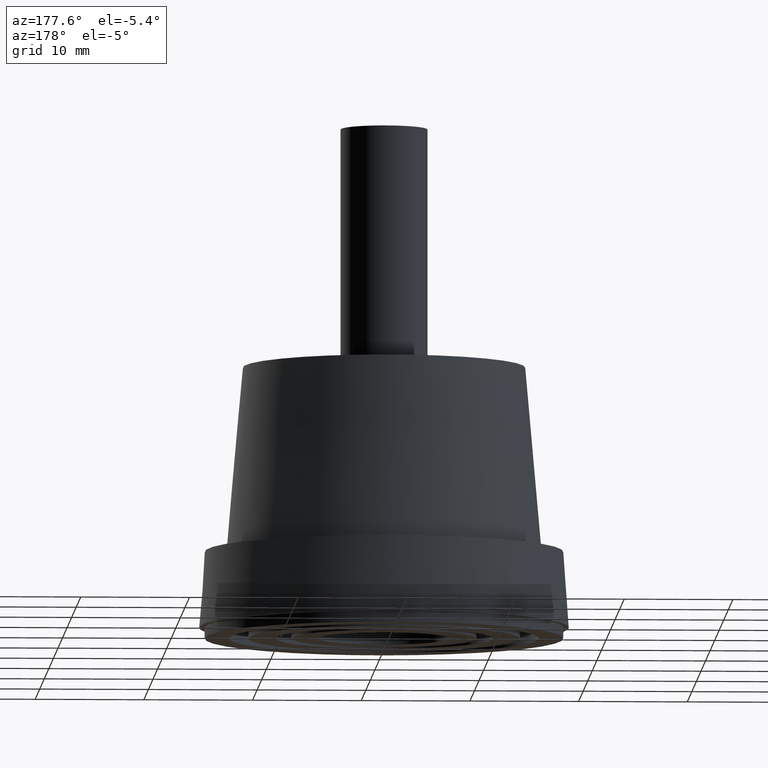
[diagram: clean part render]
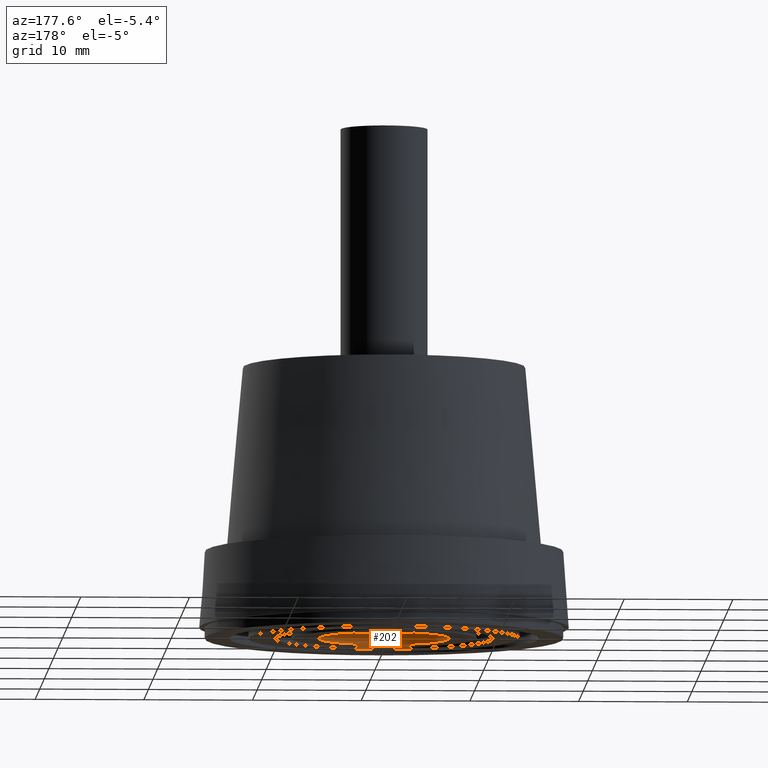
[diagram: same view with one face highlighted and labeled with its STEP entity id]
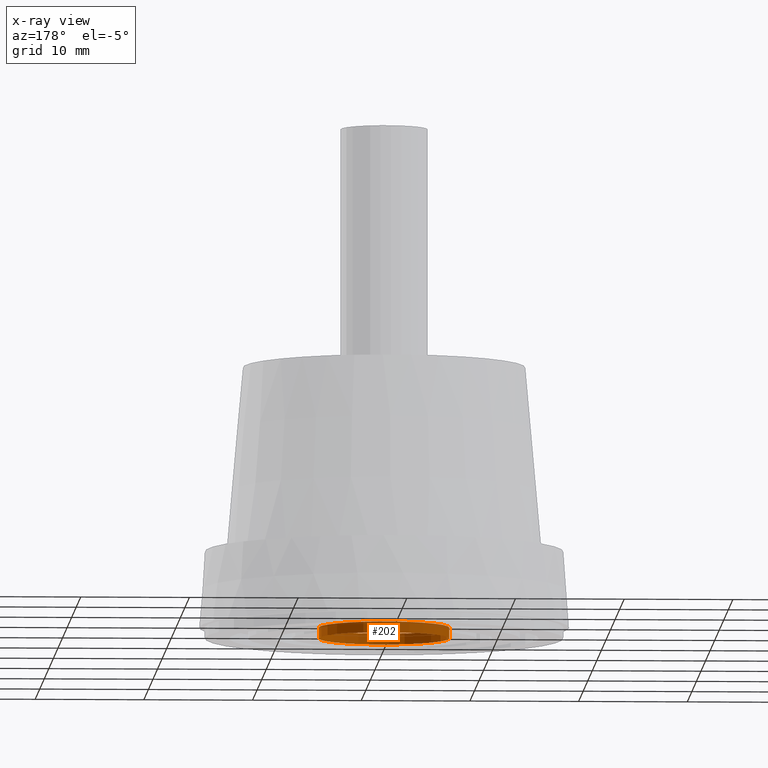
[diagram: x-ray of the same camera — body ghosted, the highlighted face saturated]
A machine part, auxiliary view. The second image highlights one B-rep face of the part: STEP entity #202.
The next image is the same camera in x-ray: the body ghosted, the highlighted face saturated — about 12% of this face is hidden behind the body in this view.
In plain terms, the highlighted cylindrical surface (bore or boss wall) has radius 6 mm, axis along (0, 0, 1).
Its self-contained STEP definition (entity closure, byte-faithful):
#33=FACE_BOUND('',#76,.T.);
#50=FACE_OUTER_BOUND('',#75,.T.);
#75=EDGE_LOOP('',(#165));
#76=EDGE_LOOP('',(#166));
#107=CIRCLE('',#232,6.);
#108=CIRCLE('',#233,6.);
#125=VERTEX_POINT('',#354);
#126=VERTEX_POINT('',#356);
#143=EDGE_CURVE('',#125,#125,#107,.T.);
#144=EDGE_CURVE('',#126,#126,#108,.T.);
#165=ORIENTED_EDGE('',*,*,#143,.T.);
#166=ORIENTED_EDGE('',*,*,#144,.F.);
#193=CYLINDRICAL_SURFACE('',#231,6.);
#202=ADVANCED_FACE('',(#50,#33),#193,.F.);
#231=AXIS2_PLACEMENT_3D('',#353,#284,#285);
#232=AXIS2_PLACEMENT_3D('',#355,#286,#287);
#233=AXIS2_PLACEMENT_3D('',#357,#288,#289);
#284=DIRECTION('center_axis',(0.,0.,1.));
#285=DIRECTION('ref_axis',(1.,0.,0.));
#286=DIRECTION('center_axis',(0.,0.,1.));
#287=DIRECTION('ref_axis',(1.,0.,0.));
#288=DIRECTION('center_axis',(0.,0.,1.));
#289=DIRECTION('ref_axis',(1.,0.,0.));
#353=CARTESIAN_POINT('Origin',(0.,0.,0.));
#354=CARTESIAN_POINT('',(-6.,7.34788079488412E-16,1.));
#355=CARTESIAN_POINT('Origin',(0.,0.,1.));
#356=CARTESIAN_POINT('',(-6.,7.34788079488412E-16,0.));
#357=CARTESIAN_POINT('Origin',(0.,0.,0.));